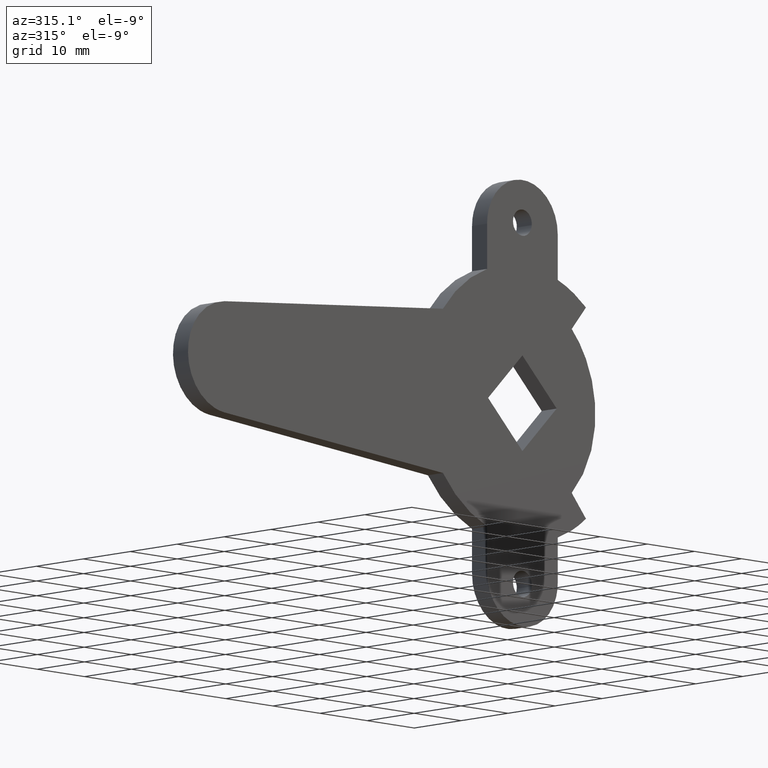
[diagram: clean part render]
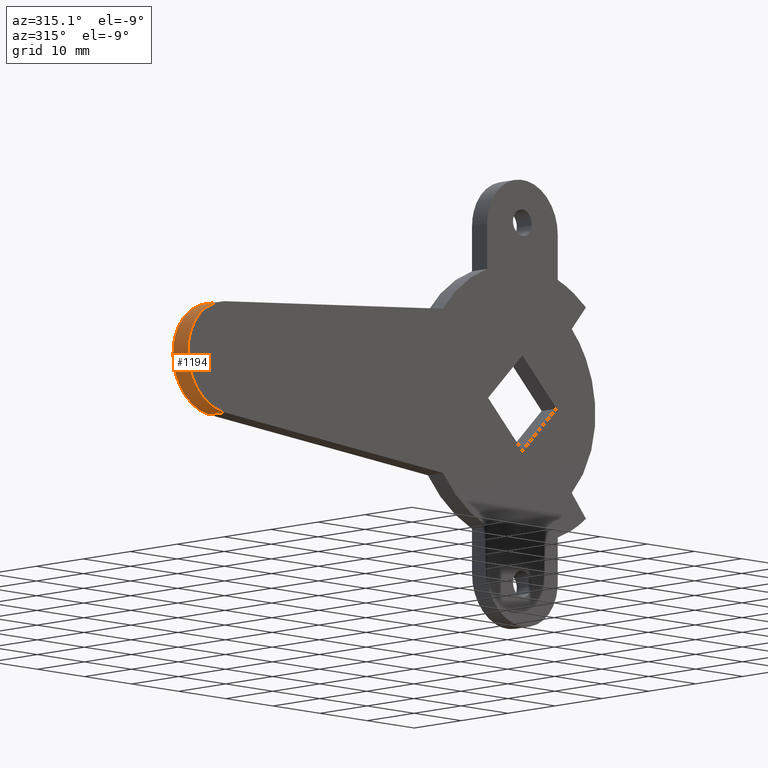
[diagram: same view with one face highlighted and labeled with its STEP entity id]
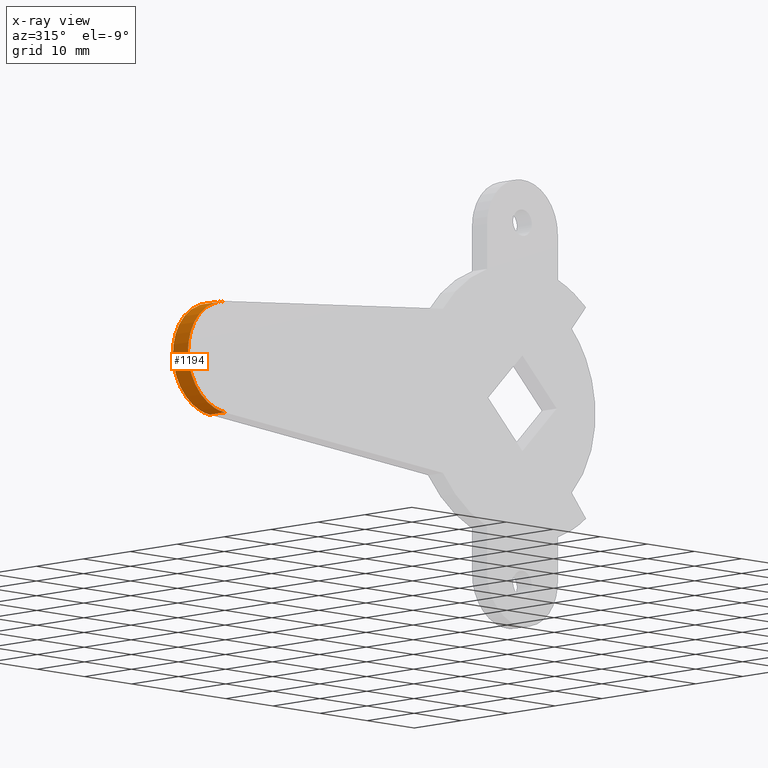
[diagram: x-ray of the same camera — body ghosted, the highlighted face saturated]
A machine part, auxiliary view. The second image highlights one B-rep face of the part: STEP entity #1194.
The next image is the same camera in x-ray: the body ghosted, the highlighted face saturated — about 0% of this face is hidden behind the body in this view.
In plain terms, the highlighted face is a freeform B-spline surface patch.
Its self-contained STEP definition (entity closure, byte-faithful):
#566=CARTESIAN_POINT('',(-63.236599818682187,0.0,-8.468000015768769));
#567=VERTEX_POINT('',#566);
#573=CARTESIAN_POINT('',(-63.236600000000003,0.0,8.468099999999890));
#574=VERTEX_POINT('',#573);
#575=CARTESIAN_POINT('',(-63.236600000000003,0.0,8.468099999999895));
#576=CARTESIAN_POINT('',(-71.000184022108911,0.0,7.792936570846801));
#577=CARTESIAN_POINT('',(-71.000183938678305,0.0,0.000049908998665));
#578=CARTESIAN_POINT('',(-71.000183855247698,0.0,-7.792836752849468));
#579=CARTESIAN_POINT('',(-63.236599818682187,0.0,-8.468000015768780));
#587=(BOUNDED_CURVE()B_SPLINE_CURVE(2,(#575,#576,#577,#578,#579),.UNSPECIFIED.,.F.,.U.)B_SPLINE_CURVE_WITH_KNOTS((3,2,3),(0.0,0.500000000000000,1.0),.UNSPECIFIED.)CURVE()GEOMETRIC_REPRESENTATION_ITEM()RATIONAL_B_SPLINE_CURVE((1.0,0.737101897522884,1.0,0.737101897522884,1.0))REPRESENTATION_ITEM(''));
#588=EDGE_CURVE('',#574,#567,#587,.T.);
#662=CARTESIAN_POINT('',(-63.236600000000003,-3.199998000000035,8.468099999999890));
#663=VERTEX_POINT('',#662);
#669=CARTESIAN_POINT('',(-63.236599818682187,-3.199998000000035,-8.468000015768769));
#670=VERTEX_POINT('',#669);
#671=CARTESIAN_POINT('',(-63.236600000000003,-3.199998000000035,8.468099999999895));
#672=CARTESIAN_POINT('',(-71.000184022108911,-3.199998000000036,7.792936570846801));
#673=CARTESIAN_POINT('',(-71.000183938678305,-3.199998000000035,0.000049908998665));
#674=CARTESIAN_POINT('',(-71.000183855247698,-3.199998000000036,-7.792836752849468));
#675=CARTESIAN_POINT('',(-63.236599818682187,-3.199998000000035,-8.468000015768780));
#683=(BOUNDED_CURVE()B_SPLINE_CURVE(2,(#671,#672,#673,#674,#675),.UNSPECIFIED.,.F.,.U.)B_SPLINE_CURVE_WITH_KNOTS((3,2,3),(0.0,0.500000000000000,1.0),.UNSPECIFIED.)CURVE()GEOMETRIC_REPRESENTATION_ITEM()RATIONAL_B_SPLINE_CURVE((1.0,0.737101897522884,1.0,0.737101897522884,1.0))REPRESENTATION_ITEM(''));
#684=EDGE_CURVE('',#663,#670,#683,.T.);
#1158=CARTESIAN_POINT('',(-63.236599818682187,-3.199998000000035,-8.468000015768769));
#1159=CARTESIAN_POINT('',(-63.236599818682187,0.0,-8.468000015768769));
#1160=QUASI_UNIFORM_CURVE('',1,(#1158,#1159),.UNSPECIFIED.,.F.,.U.);
#1161=EDGE_CURVE('',#670,#567,#1160,.T.);
#1166=CARTESIAN_POINT('',(-63.014679937530047,-3.279997950000036,8.484475638406551));
#1167=CARTESIAN_POINT('',(-63.014679937530047,0.081999948750001,8.484475638406551));
#1168=CARTESIAN_POINT('',(-71.136750538951844,-3.279997950000035,7.991941805687149));
#1169=CARTESIAN_POINT('',(-71.136750538951844,0.081999948750001,7.991941805687149));
#1170=CARTESIAN_POINT('',(-70.998965233076660,-3.279997950000036,-0.143882408265519));
#1171=CARTESIAN_POINT('',(-70.998965233076660,0.081999948750001,-0.143882408265519));
#1172=CARTESIAN_POINT('',(-70.861179927201476,-3.279997950000035,-8.279706622218175));
#1173=CARTESIAN_POINT('',(-70.861179927201476,0.081999948750001,-8.279706622218175));
#1174=CARTESIAN_POINT('',(-62.727089104519230,-3.279997950000036,-8.496932125348153));
#1175=CARTESIAN_POINT('',(-62.727089104519230,0.081999948750001,-8.496932125348153));
#1183=(BOUNDED_SURFACE()B_SPLINE_SURFACE(1,2,((#1166,#1168,#1170,#1172,#1174),(#1167,#1169,#1171,#1173,#1175)),.UNSPECIFIED.,.F.,.F.,.U.)B_SPLINE_SURFACE_WITH_KNOTS((2,2),(3,2,3),(0.0,3.361997898750037),(0.0,13.650701231853359,27.301402463706719),.UNSPECIFIED.)GEOMETRIC_REPRESENTATION_ITEM()RATIONAL_B_SPLINE_SURFACE(((1.0,0.722363962059756,1.0,0.722363962059756,1.0),(1.0,0.722363962059756,1.0,0.722363962059756,1.0)))REPRESENTATION_ITEM('')SURFACE());
#1184=ORIENTED_EDGE('',*,*,#588,.T.);
#1185=ORIENTED_EDGE('',*,*,#1161,.F.);
#1186=ORIENTED_EDGE('',*,*,#684,.F.);
#1187=CARTESIAN_POINT('',(-63.236600000000003,-3.199998000000035,8.468099999999890));
#1188=CARTESIAN_POINT('',(-63.236600000000003,0.0,8.468099999999890));
#1189=QUASI_UNIFORM_CURVE('',1,(#1187,#1188),.UNSPECIFIED.,.F.,.U.);
#1190=EDGE_CURVE('',#663,#574,#1189,.T.);
#1191=ORIENTED_EDGE('',*,*,#1190,.T.);
#1192=EDGE_LOOP('',(#1184,#1185,#1186,#1191));
#1193=FACE_OUTER_BOUND('',#1192,.T.);
#1194=ADVANCED_FACE('',(#1193),#1183,.T.);